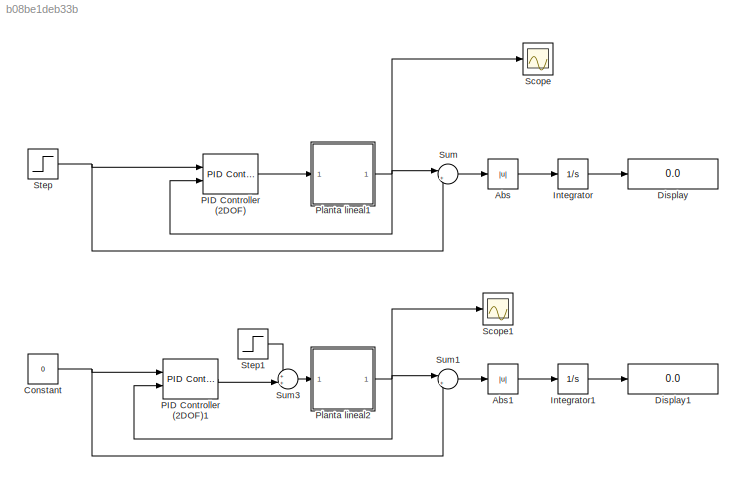
MODEL slx_b08be1deb33b
KIND model
CONFIG AbsTol = auto
CONFIG EnableMultiTasking = off
CONFIG FixedStep = auto
CONFIG MaxStep = auto
CONFIG MinStep = auto
CONFIG RelTol = 1e-3
CONFIG SampleTimeConstraint = Unconstrained
CONFIG Solver = VariableStepAuto
CONFIG SolverName = VariableStepAuto
CONFIG StartTime = 0.0
CONFIG StopTime = 1000
BLOCK [Abs] Abs
  SaturateOnIntegerOverflow = off
BLOCK [Abs] Abs1
  SaturateOnIntegerOverflow = off
BLOCK [Constant] Constant
  Value = 0
BLOCK [Display] Display
  Decimation = 1
  Ports = [1]
BLOCK [Display] Display1
  Decimation = 1
  Ports = [1]
BLOCK [Integrator] Integrator
  Ports = [1, 1]
BLOCK [Integrator] Integrator1
  Ports = [1, 1]
BLOCK [Reference] PID Controller (2DOF)  REF=simulink/Continuous/PID Controller (2DOF)
  Ports = [2, 1]
  SourceBlock = simulink/Continuous/PID Controller (2DOF)
  SourceProductBaseCode = SL
  SourceProductName = Simulink
  SourceType = PID 2dof
BLOCK [Reference] PID Controller (2DOF)1  REF=simulink/Continuous/PID Controller (2DOF)
  Ports = [2, 1]
  SourceBlock = simulink/Continuous/PID Controller (2DOF)
  SourceProductBaseCode = SL
  SourceProductName = Simulink
  SourceType = PID 2dof
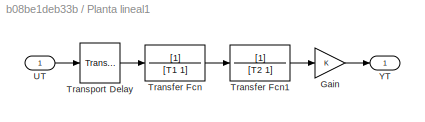
BLOCK [SubSystem] Planta lineal1
  Ports = [1, 1]
  RequestExecContextInheritance = off
BLOCK [Gain] Planta lineal1/Gain
  Gain = K
  OutDataTypeStr = Inherit: Inherit via internal rule
  ParamDataTypeStr = Inherit: Inherit via internal rule
  SaturateOnIntegerOverflow = off
BLOCK [TransferFcn] Planta lineal1/Transfer Fcn
  Denominator = [T1 1]
BLOCK [TransferFcn] Planta lineal1/Transfer Fcn1
  Denominator = [T2 1]
BLOCK [TransportDelay] Planta lineal1/Transport Delay
  BufferSize = 4096
  DelayTime = L
  Ports = [1, 1]
BLOCK [Inport] Planta lineal1/UT
  IconDisplay = Port number
BLOCK [Outport] Planta lineal1/YT
  IconDisplay = Port number
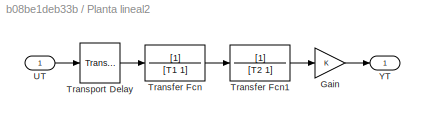
BLOCK [SubSystem] Planta lineal2
  Ports = [1, 1]
  RequestExecContextInheritance = off
BLOCK [Gain] Planta lineal2/Gain
  Gain = K
  OutDataTypeStr = Inherit: Inherit via internal rule
  ParamDataTypeStr = Inherit: Inherit via internal rule
  SaturateOnIntegerOverflow = off
BLOCK [TransferFcn] Planta lineal2/Transfer Fcn
  Denominator = [T1 1]
BLOCK [TransferFcn] Planta lineal2/Transfer Fcn1
  Denominator = [T2 1]
BLOCK [TransportDelay] Planta lineal2/Transport Delay
  BufferSize = 4096
  DelayTime = L
  Ports = [1, 1]
BLOCK [Inport] Planta lineal2/UT
  IconDisplay = Port number
BLOCK [Outport] Planta lineal2/YT
  IconDisplay = Port number
BLOCK [Scope] Scope
  Floating = off
  NumInputPorts = 1
  Ports = [1]
  ScopeSpecificationString = Simulink.scopes.TimeScopeBlockCfg('CurrentConfiguration', extmgr.ConfigurationSet(extmgr.Configuration('Core','General UI',true),extmgr.Configuration('Core','Source UI',true),extmgr.Configuration('Sources','WiredSimulink',true),extmgr.Configuration('Visuals','Time Domain',true,'SerializedDisplays',{struct('MinYLimReal','-0.24309','MaxYLimReal','1.79832','YLabelReal','','MinYLimMag','0.00000','MaxY...<+1334ch>
BLOCK [Scope] Scope1
  Floating = off
  NumInputPorts = 1
  Ports = [1]
  ScopeSpecificationString = Simulink.scopes.TimeScopeBlockCfg('CurrentConfiguration', extmgr.ConfigurationSet(extmgr.Configuration('Core','General UI',true),extmgr.Configuration('Core','Source UI',true),extmgr.Configuration('Sources','WiredSimulink',true,'DataLoggingVariableName','ScopeData1'),extmgr.Configuration('Visuals','Time Domain',true,'SerializedDisplays',{struct('MinYLimReal','-0.11991','MaxYLimReal','0.15263','YLab...<+1373ch>
BLOCK [Step] Step
  SampleTime = 0
  Time = 0
BLOCK [Step] Step1
  SampleTime = 0
  Time = 0
BLOCK [Sum] Sum
  IconShape = round
  InputSameDT = off
  Inputs = |+-
  OutDataTypeStr = Inherit: Inherit via internal rule
  Ports = [2, 1]
  SaturateOnIntegerOverflow = off
BLOCK [Sum] Sum1
  IconShape = round
  InputSameDT = off
  Inputs = |+-
  OutDataTypeStr = Inherit: Inherit via internal rule
  Ports = [2, 1]
  SaturateOnIntegerOverflow = off
BLOCK [Sum] Sum3
  IconShape = round
  InputSameDT = off
  Inputs = ++|
  OutDataTypeStr = Inherit: Inherit via internal rule
  Ports = [2, 1]
  SaturateOnIntegerOverflow = off
LINE Abs1:1 -> Integrator1:1
LINE Abs:1 -> Integrator:1
NET Constant:1 -> PID Controller (2DOF)1:1, Sum1:2
LINE Integrator1:1 -> Display1:1
LINE Integrator:1 -> Display:1
LINE PID Controller (2DOF)1:1 -> Sum3:2
LINE PID Controller (2DOF):1 -> Planta lineal1:1
LINE Planta lineal1/Gain:1 -> Planta lineal1/YT:1
LINE Planta lineal1/Transfer Fcn1:1 -> Planta lineal1/Gain:1
LINE Planta lineal1/Transfer Fcn:1 -> Planta lineal1/Transfer Fcn1:1
LINE Planta lineal1/Transport Delay:1 -> Planta lineal1/Transfer Fcn:1
LINE Planta lineal1/UT:1 -> Planta lineal1/Transport Delay:1
NET Planta lineal1:1 -> PID Controller (2DOF):2, Scope:1, Sum:1
LINE Planta lineal2/Gain:1 -> Planta lineal2/YT:1
LINE Planta lineal2/Transfer Fcn1:1 -> Planta lineal2/Gain:1
LINE Planta lineal2/Transfer Fcn:1 -> Planta lineal2/Transfer Fcn1:1
LINE Planta lineal2/Transport Delay:1 -> Planta lineal2/Transfer Fcn:1
LINE Planta lineal2/UT:1 -> Planta lineal2/Transport Delay:1
NET Planta lineal2:1 -> PID Controller (2DOF)1:2, Scope1:1, Sum1:1
LINE Step1:1 -> Sum3:1
NET Step:1 -> PID Controller (2DOF):1, Sum:2
LINE Sum1:1 -> Abs1:1
LINE Sum3:1 -> Planta lineal2:1
LINE Sum:1 -> Abs:1
note: NET lines group one-source signal fan-out (src -> all destinations, sorted); 1:1 wires keep LINE
